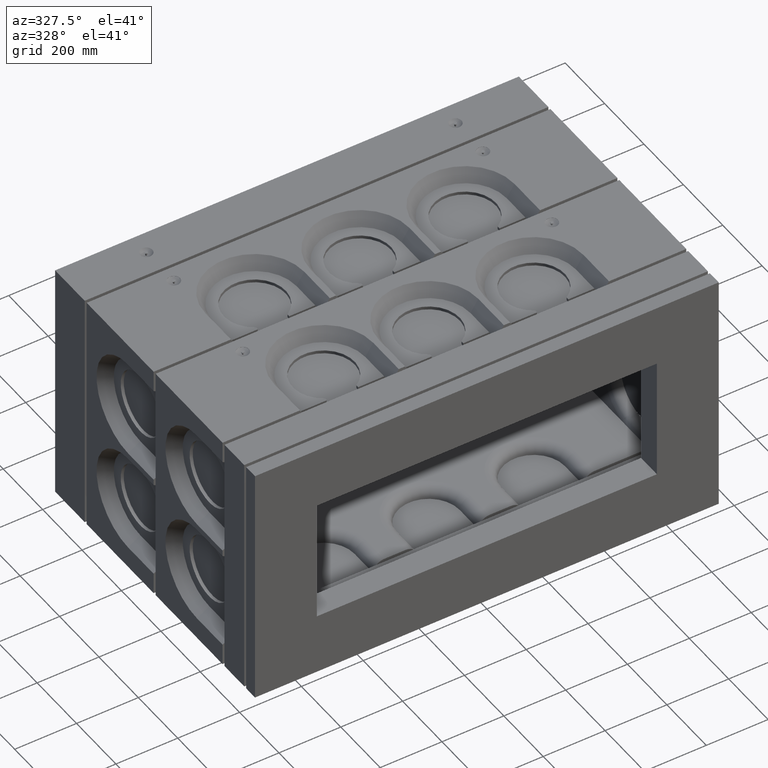
[diagram: clean part render]
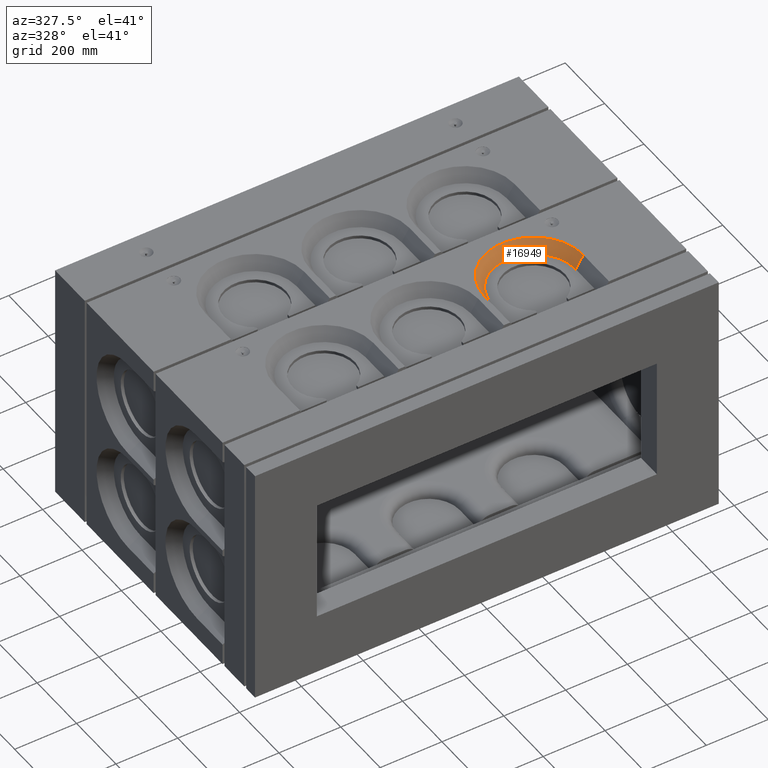
[diagram: same view with one face highlighted and labeled with its STEP entity id]
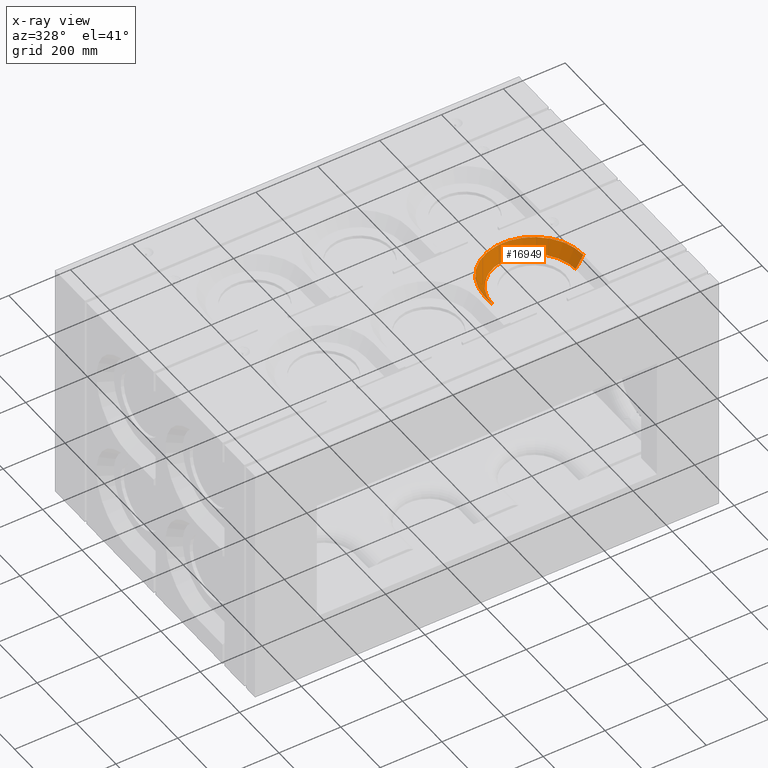
[diagram: x-ray of the same camera — body ghosted, the highlighted face saturated]
A machine part, auxiliary view. The second image highlights one B-rep face of the part: STEP entity #16949.
The next image is the same camera in x-ray: the body ghosted, the highlighted face saturated — about 0% of this face is hidden behind the body in this view.
In plain terms, the highlighted conical surface has half-angle 32 deg.
Its self-contained STEP definition (entity closure, byte-faithful):
#611 = AXIS2_PLACEMENT_3D ( 'NONE', #23087, #11702, #14608 ) ;
#822 = VERTEX_POINT ( 'NONE', #36505 ) ;
#1203 = VERTEX_POINT ( 'NONE', #5954 ) ;
#1316 = LINE ( 'NONE', #13777, #16751 ) ;
#2443 = ORIENTED_EDGE ( 'NONE', *, *, #27856, .F. ) ;
#3521 = ORIENTED_EDGE ( 'NONE', *, *, #6208, .F. ) ;
#3724 = CIRCLE ( 'NONE', #12283, 135.0052259236268526 ) ;
#5954 = CARTESIAN_POINT ( 'NONE',  ( 204.9947740763731758, 295.0000000000000568, 359.9999999999997158 ) ) ;
#6208 = EDGE_CURVE ( 'NONE', #1203, #822, #1316, .T. ) ;
#8595 = FACE_OUTER_BOUND ( 'NONE', #22038, .T. ) ;
#8656 = VERTEX_POINT ( 'NONE', #12985 ) ;
#8724 = DIRECTION ( 'NONE',  ( 0.5299192642332060110, -1.883537077164254358E-16, 0.8480480961564252906 ) ) ;
#11702 = DIRECTION ( 'NONE',  ( 1.734723475976807711E-17, -4.996003610813204432E-16, 1.000000000000000000 ) ) ;
#12283 = AXIS2_PLACEMENT_3D ( 'NONE', #12555, #33457, #30565 ) ;
#12475 = EDGE_CURVE ( 'NONE', #32845, #8656, #25072, .T. ) ;
#12555 = CARTESIAN_POINT ( 'NONE',  ( 340.0000000000000000, 295.0000000000000568, 359.9999999999997158 ) ) ;
#12985 = CARTESIAN_POINT ( 'NONE',  ( 500.0000000000000000, 295.0000000000000568, 399.9999999999997158 ) ) ;
#13777 = CARTESIAN_POINT ( 'NONE',  ( 180.0000000000000000, 295.0000000000000568, 399.9999999999997158 ) ) ;
#13897 = CARTESIAN_POINT ( 'NONE',  ( 340.0000000000000000, 295.0000000000000000, 399.9999999999997158 ) ) ;
#14298 = VECTOR ( 'NONE', #8724, 1000.000000000000114 ) ;
#14608 = DIRECTION ( 'NONE',  ( 1.000000000000000000, 0.0000000000000000000, 0.0000000000000000000 ) ) ;
#16751 = VECTOR ( 'NONE', #32673, 1000.000000000000114 ) ;
#16910 = CARTESIAN_POINT ( 'NONE',  ( 500.0000000000000000, 295.0000000000000568, 399.9999999999997158 ) ) ;
#16949 = ADVANCED_FACE ( 'NONE', ( #8595 ), #32343, .F. ) ;
#19588 = ORIENTED_EDGE ( 'NONE', *, *, #30840, .T. ) ;
#22038 = EDGE_LOOP ( 'NONE', ( #19588, #3521, #2443, #24022 ) ) ;
#23087 = CARTESIAN_POINT ( 'NONE',  ( 340.0000000000000000, 295.0000000000000000, 399.9999999999997158 ) ) ;
#24022 = ORIENTED_EDGE ( 'NONE', *, *, #12475, .T. ) ;
#24375 = AXIS2_PLACEMENT_3D ( 'NONE', #13897, #37758, #32538 ) ;
#25072 = LINE ( 'NONE', #16910, #14298 ) ;
#25830 = CIRCLE ( 'NONE', #611, 159.9999999999999716 ) ;
#27856 = EDGE_CURVE ( 'NONE', #32845, #1203, #3724, .T. ) ;
#30565 = DIRECTION ( 'NONE',  ( 1.000000000000000000, 0.0000000000000000000, 0.0000000000000000000 ) ) ;
#30840 = EDGE_CURVE ( 'NONE', #8656, #822, #25830, .T. ) ;
#31753 = CARTESIAN_POINT ( 'NONE',  ( 475.0052259236268810, 295.0000000000000568, 359.9999999999996589 ) ) ;
#32343 = CONICAL_SURFACE ( 'NONE', #24375, 159.9999999999999716, 0.5585053606381866764 ) ;
#32538 = DIRECTION ( 'NONE',  ( 1.000000000000000000, 0.0000000000000000000, 0.0000000000000000000 ) ) ;
#32673 = DIRECTION ( 'NONE',  ( -0.5299192642332060110, -3.317587962503064831E-16, 0.8480480961564252906 ) ) ;
#32845 = VERTEX_POINT ( 'NONE', #31753 ) ;
#33457 = DIRECTION ( 'NONE',  ( 1.734723475976807711E-17, -4.996003610813204432E-16, 1.000000000000000000 ) ) ;
#36505 = CARTESIAN_POINT ( 'NONE',  ( 179.9999999999999432, 295.0000000000000568, 399.9999999999997158 ) ) ;
#37758 = DIRECTION ( 'NONE',  ( 1.734723475976807711E-17, -4.996003610813204432E-16, 1.000000000000000000 ) ) ;